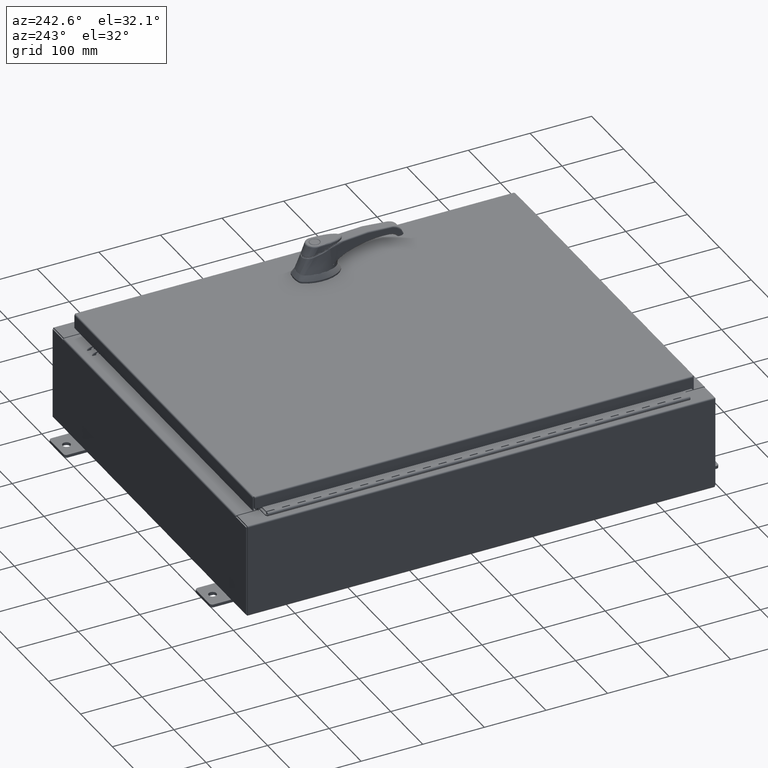
[diagram: clean part render]
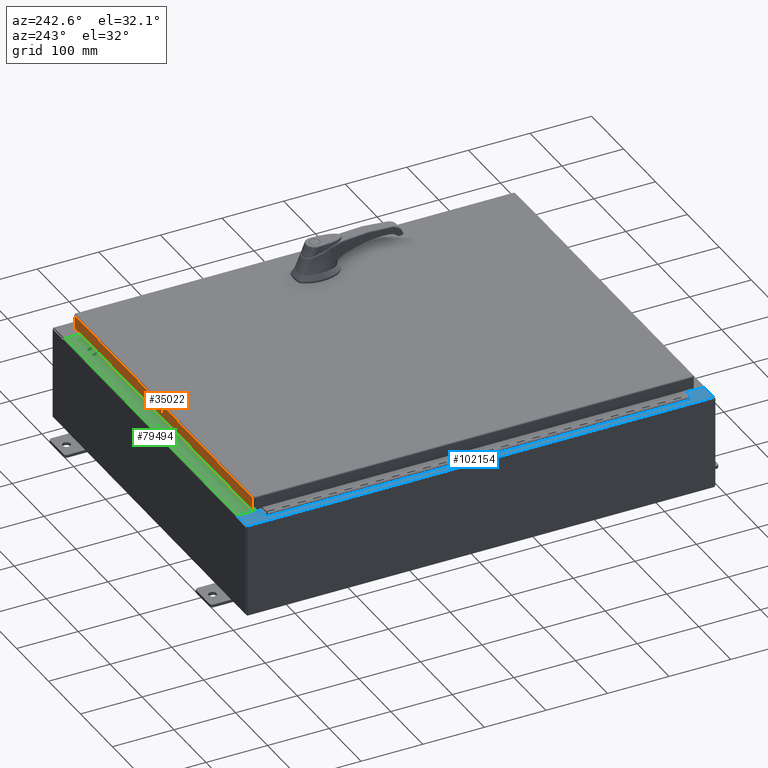
[diagram: same view with three faces highlighted in distinct colors, each labeled with its STEP entity id]
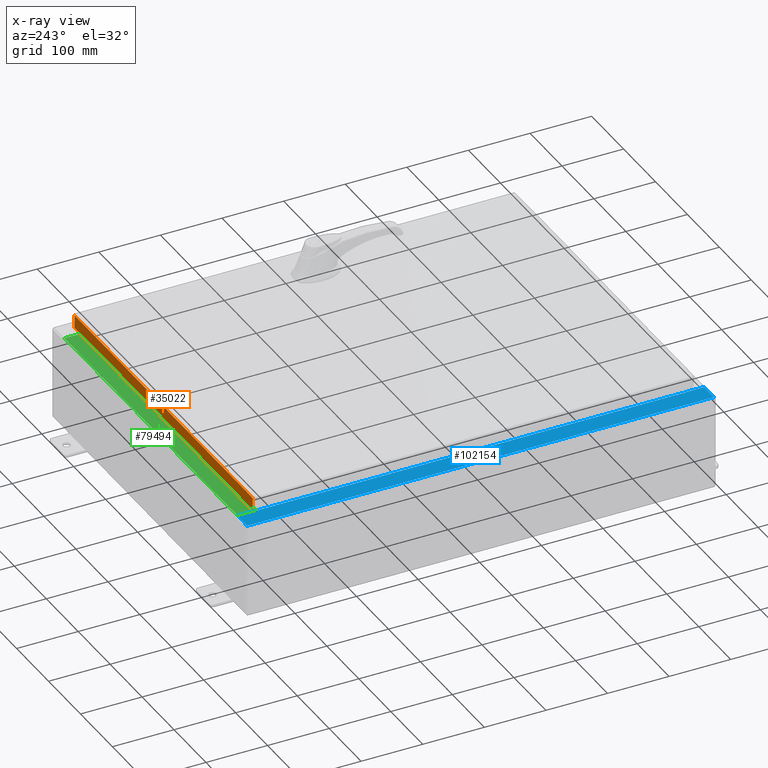
[diagram: x-ray of the same camera — body ghosted, the three highlighted faces saturated]
A machine part, auxiliary view with three faces highlighted in distinct colors.
The next image is the same camera in x-ray (body ghosted, the three faces saturated) — at least one of them is partly hidden behind the body in this view.
Their STEP definitions:

[orange] entity #35022 — the highlighted planar face has unit normal (0, -1, -0).
#2646 = DIRECTION ( 'NONE',  ( 0.0000000000000000000, 2.532419924601858200E-015, -1.000000000000000000 ) ) ;
#3671 = CARTESIAN_POINT ( 'NONE',  ( -10.98915786437626900, 14.09400000000000100, -0.9377000000000025300 ) ) ;
#10935 = DIRECTION ( 'NONE',  ( -0.0000000000000000000, 2.532419924601858200E-015, -1.000000000000000000 ) ) ;
#12355 = AXIS2_PLACEMENT_3D ( 'NONE', #29881, #57393, #2646 ) ;
#13342 = VECTOR ( 'NONE', #38290, 39.37007874015748100 ) ;
#13718 = EDGE_CURVE ( 'NONE', #52404, #62436, #46071, .T. ) ;
#16011 = VECTOR ( 'NONE', #39140, 39.37007874015748100 ) ;
#17933 = EDGE_LOOP ( 'NONE', ( #62891, #109230, #80842, #77707 ) ) ;
#25596 = VECTOR ( 'NONE', #71002, 39.37007874015748100 ) ;
#29881 = CARTESIAN_POINT ( 'NONE',  ( -4.400835781423494800E-030, 14.09399999999999900, 3.595274007335016100E-014 ) ) ;
#34066 = CARTESIAN_POINT ( 'NONE',  ( -10.98915786437626700, 14.09399999999999900, -0.08770000000000008300 ) ) ;
#35022 = ADVANCED_FACE ( 'NONE', ( #53487 ), #48228, .F. ) ;
#38290 = DIRECTION ( 'NONE',  ( 1.000000000000000000, -4.379057701015054300E-047, 1.233005954894504400E-016 ) ) ;
#39140 = DIRECTION ( 'NONE',  ( 0.0000000000000000000, 2.532419924601858200E-015, -1.000000000000000000 ) ) ;
#40536 = LINE ( 'NONE', #84346, #13342 ) ;
#46071 = LINE ( 'NONE', #113295, #16011 ) ;
#48228 = PLANE ( 'NONE',  #12355 ) ;
#52183 = CARTESIAN_POINT ( 'NONE',  ( -11.07799999999999900, 14.09399999999999900, -0.08770000000000008300 ) ) ;
#52404 = VERTEX_POINT ( 'NONE', #116379 ) ;
#52762 = LINE ( 'NONE', #52183, #25596 ) ;
#53487 = FACE_OUTER_BOUND ( 'NONE', #17933, .T. ) ;
#53741 = EDGE_CURVE ( 'NONE', #66596, #62436, #40536, .T. ) ;
#53928 = LINE ( 'NONE', #83835, #99921 ) ;
#57393 = DIRECTION ( 'NONE',  ( 3.122488847327582500E-031, -1.000000000000000000, -2.532419924601858200E-015 ) ) ;
#61182 = EDGE_CURVE ( 'NONE', #83001, #66596, #53928, .T. ) ;
#62436 = VERTEX_POINT ( 'NONE', #116604 ) ;
#62891 = ORIENTED_EDGE ( 'NONE', *, *, #80175, .F. ) ;
#66596 = VERTEX_POINT ( 'NONE', #3671 ) ;
#71002 = DIRECTION ( 'NONE',  ( -1.000000000000000000, -3.122488847327583000E-031, -7.817847125977018100E-046 ) ) ;
#77707 = ORIENTED_EDGE ( 'NONE', *, *, #61182, .F. ) ;
#80175 = EDGE_CURVE ( 'NONE', #52404, #83001, #52762, .T. ) ;
#80842 = ORIENTED_EDGE ( 'NONE', *, *, #53741, .F. ) ;
#83001 = VERTEX_POINT ( 'NONE', #34066 ) ;
#83835 = CARTESIAN_POINT ( 'NONE',  ( -10.98915786437626900, 14.09399999999999900, -0.07469999999999980800 ) ) ;
#84346 = CARTESIAN_POINT ( 'NONE',  ( -11.07799999999999900, 14.09400000000000100, -0.9377000000000025300 ) ) ;
#99921 = VECTOR ( 'NONE', #10935, 39.37007874015748100 ) ;
#109230 = ORIENTED_EDGE ( 'NONE', *, *, #13718, .T. ) ;
#113295 = CARTESIAN_POINT ( 'NONE',  ( 10.98915786437626900, 14.09399999999999900, 3.595274007335016100E-014 ) ) ;
#116379 = CARTESIAN_POINT ( 'NONE',  ( 10.98915786437626700, 14.09399999999999900, -0.08770000000000008300 ) ) ;
#116604 = CARTESIAN_POINT ( 'NONE',  ( 10.98915786437626700, 14.09400000000000100, -0.9376999999999997600 ) ) ;

[blue] entity #102154 — the highlighted planar face has unit normal (0, 0, -1).
#2879 = FACE_OUTER_BOUND ( 'NONE', #109226, .T. ) ;
#5308 = LINE ( 'NONE', #84617, #97080 ) ;
#6860 = DIRECTION ( 'NONE',  ( 1.000000000000000000, 0.0000000000000000000, 0.0000000000000000000 ) ) ;
#7580 = ORIENTED_EDGE ( 'NONE', *, *, #115277, .F. ) ;
#8044 = VERTEX_POINT ( 'NONE', #86089 ) ;
#8624 = CARTESIAN_POINT ( 'NONE',  ( -10.75005000000002500, 13.63109999999999600, 5.925300000000008000 ) ) ;
#8761 = ORIENTED_EDGE ( 'NONE', *, *, #60317, .T. ) ;
#9250 = VERTEX_POINT ( 'NONE', #8624 ) ;
#10816 = CARTESIAN_POINT ( 'NONE',  ( -10.69970000000002500, -14.92530000000000000, 5.925300000000008000 ) ) ;
#12347 = CARTESIAN_POINT ( 'NONE',  ( -4.252457061909017700E-014, -14.92530000000000000, 5.925300000000084400 ) ) ;
#14118 = CIRCLE ( 'NONE', #30518, 0.01867499999999949400 ) ;
#15617 = VERTEX_POINT ( 'NONE', #42255 ) ;
#16358 = LINE ( 'NONE', #89026, #19240 ) ;
#17606 = DIRECTION ( 'NONE',  ( -7.132762385546384700E-015, -0.0000000000000000000, 1.000000000000000000 ) ) ;
#19240 = VECTOR ( 'NONE', #6860, 39.37007874015748100 ) ;
#19469 = CARTESIAN_POINT ( 'NONE',  ( -11.91230000000002500, 14.92530000000000000, 5.925299999999999100 ) ) ;
#21302 = DIRECTION ( 'NONE',  ( -1.000000000000000000, -3.263857780453126100E-032, -7.132762385546384700E-015 ) ) ;
#21545 = DIRECTION ( 'NONE',  ( 1.000000000000000000, 0.0000000000000000000, 7.132762385546384700E-015 ) ) ;
#24898 = ORIENTED_EDGE ( 'NONE', *, *, #79431, .T. ) ;
#25338 = ORIENTED_EDGE ( 'NONE', *, *, #117041, .F. ) ;
#26047 = LINE ( 'NONE', #71645, #74704 ) ;
#29302 = EDGE_CURVE ( 'NONE', #41147, #15617, #91404, .T. ) ;
#30103 = ORIENTED_EDGE ( 'NONE', *, *, #62099, .F. ) ;
#30518 = AXIS2_PLACEMENT_3D ( 'NONE', #72380, #17606, #81673 ) ;
#30720 = CARTESIAN_POINT ( 'NONE',  ( -10.75005000000002500, 13.59374999999999800, 5.925300000000008000 ) ) ;
#33812 = LINE ( 'NONE', #96022, #82549 ) ;
#34296 = ORIENTED_EDGE ( 'NONE', *, *, #61206, .T. ) ;
#35124 = DIRECTION ( 'NONE',  ( -2.493308838643432600E-031, 1.000000000000000000, -1.778417949982621800E-045 ) ) ;
#37204 = ORIENTED_EDGE ( 'NONE', *, *, #72417, .F. ) ;
#37394 = VECTOR ( 'NONE', #115615, 39.37007874015748100 ) ;
#37452 = VERTEX_POINT ( 'NONE', #30720 ) ;
#38359 = EDGE_CURVE ( 'NONE', #41740, #49038, #89033, .T. ) ;
#38421 = VECTOR ( 'NONE', #35124, 39.37007874015748100 ) ;
#39496 = VERTEX_POINT ( 'NONE', #109074 ) ;
#41147 = VERTEX_POINT ( 'NONE', #85898 ) ;
#41740 = VERTEX_POINT ( 'NONE', #53228 ) ;
#41987 = PLANE ( 'NONE',  #105088 ) ;
#42255 = CARTESIAN_POINT ( 'NONE',  ( -10.71270000000002700, -13.59375000000000000, 5.925300000000009800 ) ) ;
#43519 = DIRECTION ( 'NONE',  ( -7.132762385546384700E-015, -0.0000000000000000000, 1.000000000000000000 ) ) ;
#46885 = VERTEX_POINT ( 'NONE', #100647 ) ;
#48108 = VECTOR ( 'NONE', #74244, 39.37007874015748100 ) ;
#48663 = VERTEX_POINT ( 'NONE', #50777 ) ;
#49038 = VERTEX_POINT ( 'NONE', #84503 ) ;
#49816 = DIRECTION ( 'NONE',  ( -1.000000000000000000, 0.0000000000000000000, 0.0000000000000000000 ) ) ;
#50045 = CARTESIAN_POINT ( 'NONE',  ( -10.71270000000002700, 13.59375000000000000, 5.925300000000009800 ) ) ;
#50777 = CARTESIAN_POINT ( 'NONE',  ( -10.75005000000002500, -13.59375000000000000, 5.925300000000008000 ) ) ;
#51549 = CARTESIAN_POINT ( 'NONE',  ( -10.69970000000002500, -2.667765658083309700E-030, 5.925300000000008000 ) ) ;
#51641 = EDGE_CURVE ( 'NONE', #9250, #37452, #14118, .T. ) ;
#52888 = DIRECTION ( 'NONE',  ( -1.000000000000000000, 0.0000000000000000000, 2.170286390200049500E-014 ) ) ;
#53210 = AXIS2_PLACEMENT_3D ( 'NONE', #98516, #43519, #107640 ) ;
#53228 = CARTESIAN_POINT ( 'NONE',  ( -10.69970000000002500, 13.63109999999999600, 5.925300000000008000 ) ) ;
#56888 = VECTOR ( 'NONE', #52888, 39.37007874015748100 ) ;
#56910 = LINE ( 'NONE', #90055, #38421 ) ;
#57766 = ORIENTED_EDGE ( 'NONE', *, *, #38359, .T. ) ;
#58221 = VECTOR ( 'NONE', #104955, 39.37007874015748100 ) ;
#60122 = ORIENTED_EDGE ( 'NONE', *, *, #51641, .F. ) ;
#60317 = EDGE_CURVE ( 'NONE', #111647, #46885, #56910, .T. ) ;
#60342 = DIRECTION ( 'NONE',  ( -1.000000000000000000, 0.0000000000000000000, -7.132762385546384700E-015 ) ) ;
#61206 = EDGE_CURVE ( 'NONE', #49038, #39496, #5308, .T. ) ;
#62099 = EDGE_CURVE ( 'NONE', #8044, #39496, #72426, .T. ) ;
#62834 = VECTOR ( 'NONE', #21545, 39.37007874015748100 ) ;
#71645 = CARTESIAN_POINT ( 'NONE',  ( -10.75005000000002500, -13.63109999999999800, 5.925300000000009800 ) ) ;
#72380 = CARTESIAN_POINT ( 'NONE',  ( -10.75005000000002500, 13.61242499999999600, 5.925300000000009800 ) ) ;
#72417 = EDGE_CURVE ( 'NONE', #15617, #48663, #33812, .T. ) ;
#72426 = LINE ( 'NONE', #19469, #48108 ) ;
#74244 = DIRECTION ( 'NONE',  ( -0.0000000000000000000, 1.000000000000000000, -0.0000000000000000000 ) ) ;
#74704 = VECTOR ( 'NONE', #80944, 39.37007874015748100 ) ;
#75976 = EDGE_CURVE ( 'NONE', #37452, #41147, #16358, .T. ) ;
#77217 = ORIENTED_EDGE ( 'NONE', *, *, #75976, .F. ) ;
#79431 = EDGE_CURVE ( 'NONE', #8044, #111647, #111641, .T. ) ;
#80944 = DIRECTION ( 'NONE',  ( 1.000000000000000000, 0.0000000000000000000, -2.170286390200049500E-014 ) ) ;
#81673 = DIRECTION ( 'NONE',  ( 1.000000000000000000, 0.0000000000000000000, 0.0000000000000000000 ) ) ;
#82549 = VECTOR ( 'NONE', #49816, 39.37007874015748100 ) ;
#82838 = CIRCLE ( 'NONE', #53210, 0.01867499999999949400 ) ;
#84503 = CARTESIAN_POINT ( 'NONE',  ( -10.69970000000002500, 14.92530000000000000, 5.925300000000008000 ) ) ;
#84617 = CARTESIAN_POINT ( 'NONE',  ( -4.252457061909017700E-014, 14.92530000000000000, 5.925300000000084400 ) ) ;
#85708 = ORIENTED_EDGE ( 'NONE', *, *, #98447, .F. ) ;
#85898 = CARTESIAN_POINT ( 'NONE',  ( -10.71270000000002700, 13.59374999999999800, 5.925300000000009800 ) ) ;
#86089 = CARTESIAN_POINT ( 'NONE',  ( -11.91230000000002500, -14.92530000000000000, 5.925299999999999100 ) ) ;
#89026 = CARTESIAN_POINT ( 'NONE',  ( -10.75005000000002500, 13.59374999999999800, 5.925300000000009800 ) ) ;
#89033 = LINE ( 'NONE', #51549, #37394 ) ;
#90055 = CARTESIAN_POINT ( 'NONE',  ( -10.69970000000002500, -2.667765658083309700E-030, 5.925300000000008000 ) ) ;
#91404 = LINE ( 'NONE', #50045, #58221 ) ;
#96022 = CARTESIAN_POINT ( 'NONE',  ( -10.71270000000002700, -13.59375000000000000, 5.925300000000009800 ) ) ;
#96558 = CARTESIAN_POINT ( 'NONE',  ( -10.75005000000002500, -13.63109999999999800, 5.925300000000008000 ) ) ;
#97080 = VECTOR ( 'NONE', #21302, 39.37007874015748100 ) ;
#98447 = EDGE_CURVE ( 'NONE', #105757, #46885, #26047, .T. ) ;
#98516 = CARTESIAN_POINT ( 'NONE',  ( -10.75005000000002500, -13.61242500000000000, 5.925300000000009800 ) ) ;
#100647 = CARTESIAN_POINT ( 'NONE',  ( -10.69970000000002500, -13.63110000000000200, 5.925300000000008000 ) ) ;
#102154 = ADVANCED_FACE ( 'NONE', ( #2879 ), #41987, .F. ) ;
#104955 = DIRECTION ( 'NONE',  ( -0.0000000000000000000, -1.000000000000000000, -0.0000000000000000000 ) ) ;
#105088 = AXIS2_PLACEMENT_3D ( 'NONE', #106107, #115232, #60342 ) ;
#105667 = LINE ( 'NONE', #107797, #56888 ) ;
#105757 = VERTEX_POINT ( 'NONE', #96558 ) ;
#106107 = CARTESIAN_POINT ( 'NONE',  ( -4.252457061909017700E-014, 0.0000000000000000000, 5.925300000000084400 ) ) ;
#107640 = DIRECTION ( 'NONE',  ( 1.000000000000000000, 0.0000000000000000000, 0.0000000000000000000 ) ) ;
#107797 = CARTESIAN_POINT ( 'NONE',  ( -10.69970000000002500, 13.63109999999999600, 5.925300000000008900 ) ) ;
#109074 = CARTESIAN_POINT ( 'NONE',  ( -11.91230000000002500, 14.92530000000000000, 5.925299999999999100 ) ) ;
#109226 = EDGE_LOOP ( 'NONE', ( #25338, #57766, #34296, #30103, #24898, #8761, #85708, #7580, #37204, #109320, #77217, #60122 ) ) ;
#109320 = ORIENTED_EDGE ( 'NONE', *, *, #29302, .F. ) ;
#111641 = LINE ( 'NONE', #12347, #62834 ) ;
#111647 = VERTEX_POINT ( 'NONE', #10816 ) ;
#115232 = DIRECTION ( 'NONE',  ( 7.132762385546384700E-015, 0.0000000000000000000, -1.000000000000000000 ) ) ;
#115277 = EDGE_CURVE ( 'NONE', #48663, #105757, #82838, .T. ) ;
#115615 = DIRECTION ( 'NONE',  ( -2.493308838643432600E-031, 1.000000000000000000, -1.778417949982621800E-045 ) ) ;
#117041 = EDGE_CURVE ( 'NONE', #41740, #9250, #105667, .T. ) ;

[green] entity #79494 — the highlighted planar face has unit normal (0, 0, 1).
#4304 = DIRECTION ( 'NONE',  ( 0.0000000000000000000, 3.566381192773190000E-015, 1.000000000000000000 ) ) ;
#17028 = DIRECTION ( 'NONE',  ( -1.000000000000000000, 0.0000000000000000000, 0.0000000000000000000 ) ) ;
#19805 = VERTEX_POINT ( 'NONE', #24332 ) ;
#20868 = EDGE_CURVE ( 'NONE', #92741, #101314, #40169, .T. ) ;
#24332 = CARTESIAN_POINT ( 'NONE',  ( 10.63720000000000200, -1.287299999999999900, 3.000000000000005300 ) ) ;
#25621 = AXIS2_PLACEMENT_3D ( 'NONE', #86447, #4304, #68269 ) ;
#31667 = CARTESIAN_POINT ( 'NONE',  ( 10.63720000000000400, -0.08769999999999965300, 3.000000000000000900 ) ) ;
#33110 = CARTESIAN_POINT ( 'NONE',  ( -2.252313287748515100E-018, -0.08770000000000000000, 3.000000000000001300 ) ) ;
#35707 = FACE_OUTER_BOUND ( 'NONE', #118404, .T. ) ;
#40169 = LINE ( 'NONE', #33110, #113192 ) ;
#42463 = VECTOR ( 'NONE', #49297, 39.37007874015748100 ) ;
#48939 = ORIENTED_EDGE ( 'NONE', *, *, #93925, .F. ) ;
#49297 = DIRECTION ( 'NONE',  ( -0.0000000000000000000, 1.000000000000000000, -3.566381192773190000E-015 ) ) ;
#57221 = EDGE_CURVE ( 'NONE', #92741, #19805, #110272, .T. ) ;
#59040 = PLANE ( 'NONE',  #25621 ) ;
#60651 = VERTEX_POINT ( 'NONE', #103527 ) ;
#68269 = DIRECTION ( 'NONE',  ( 0.0000000000000000000, -1.000000000000000000, 3.566381192773190000E-015 ) ) ;
#68917 = CARTESIAN_POINT ( 'NONE',  ( -10.63720000000000200, -0.08770000000000000000, 3.000000000000000900 ) ) ;
#77168 = VECTOR ( 'NONE', #17028, 39.37007874015748100 ) ;
#79494 = ADVANCED_FACE ( 'NONE', ( #35707 ), #59040, .T. ) ;
#83110 = VECTOR ( 'NONE', #86105, 39.37007874015748100 ) ;
#86105 = DIRECTION ( 'NONE',  ( -0.0000000000000000000, -1.000000000000000000, 3.566381192773190000E-015 ) ) ;
#86447 = CARTESIAN_POINT ( 'NONE',  ( 0.0000000000000000000, 1.069354855923099900E-014, 3.000000000000000900 ) ) ;
#87345 = ORIENTED_EDGE ( 'NONE', *, *, #57221, .F. ) ;
#88045 = DIRECTION ( 'NONE',  ( -1.000000000000000000, 2.568202152506545800E-017, -9.159187855938968600E-032 ) ) ;
#88448 = LINE ( 'NONE', #113331, #42463 ) ;
#90364 = EDGE_CURVE ( 'NONE', #19805, #60651, #101616, .T. ) ;
#92741 = VERTEX_POINT ( 'NONE', #31667 ) ;
#93925 = EDGE_CURVE ( 'NONE', #60651, #101314, #88448, .T. ) ;
#97479 = ORIENTED_EDGE ( 'NONE', *, *, #20868, .T. ) ;
#101314 = VERTEX_POINT ( 'NONE', #68917 ) ;
#101616 = LINE ( 'NONE', #108316, #77168 ) ;
#103527 = CARTESIAN_POINT ( 'NONE',  ( -10.63720000000000200, -1.287299999999999200, 3.000000000000005300 ) ) ;
#108316 = CARTESIAN_POINT ( 'NONE',  ( 10.63720000000000400, -1.287299999999999900, 3.000000000000005300 ) ) ;
#109357 = ORIENTED_EDGE ( 'NONE', *, *, #90364, .F. ) ;
#110272 = LINE ( 'NONE', #113206, #83110 ) ;
#113192 = VECTOR ( 'NONE', #88045, 39.37007874015748100 ) ;
#113206 = CARTESIAN_POINT ( 'NONE',  ( 10.63720000000000200, -1.300299999999999800, 3.000000000000005300 ) ) ;
#113331 = CARTESIAN_POINT ( 'NONE',  ( -10.63720000000000200, -0.07469999999999973900, 3.000000000000000900 ) ) ;
#118404 = EDGE_LOOP ( 'NONE', ( #48939, #109357, #87345, #97479 ) ) ;